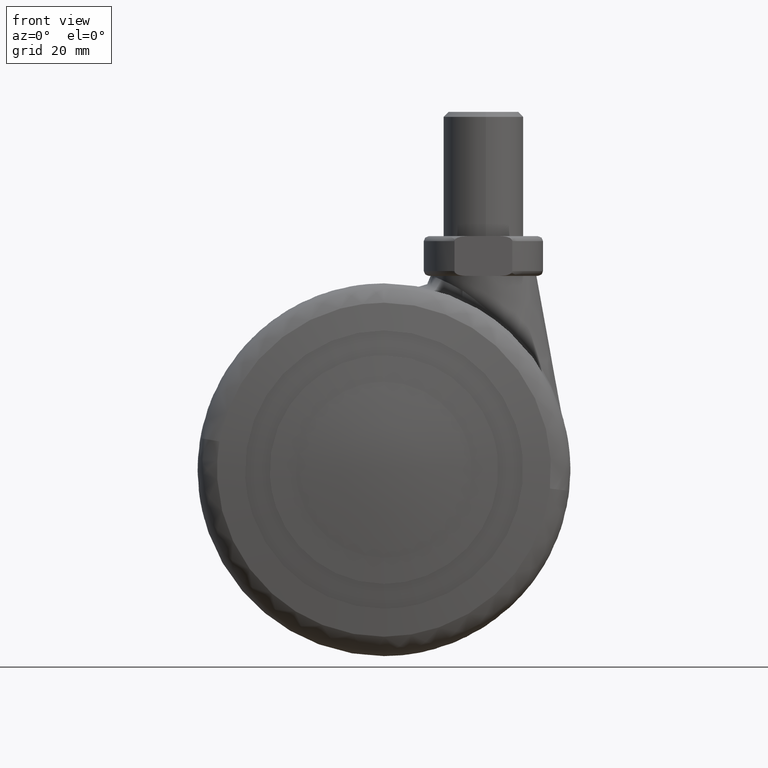
[diagram: clean part render]
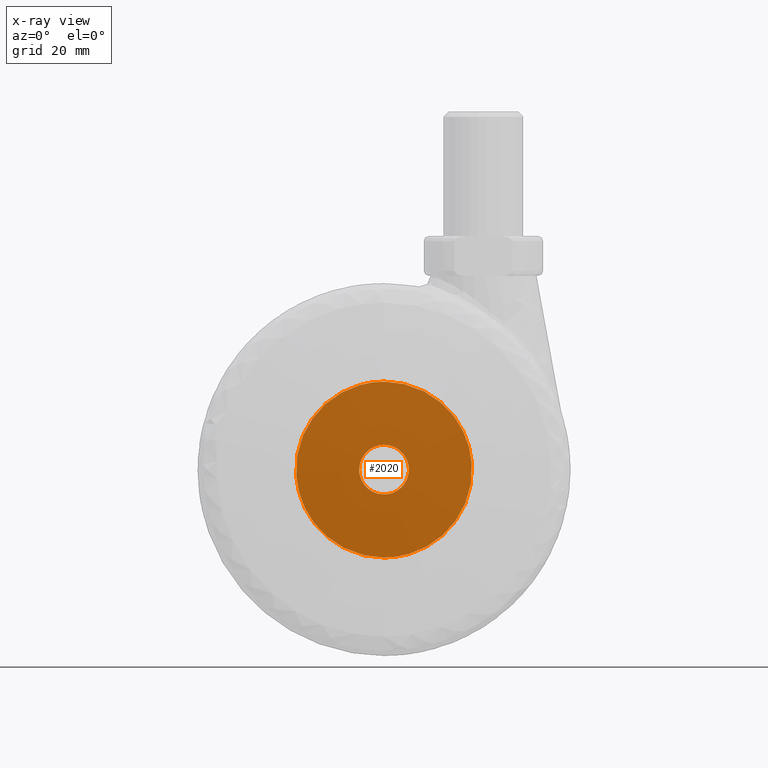
[diagram: x-ray — body ghosted, one internal face saturated and labeled with its STEP entity id]
A machine part, front view, then the same camera in x-ray: the body is ghosted and one INTERNAL B-rep face — a face not visible from any outside direction — is saturated and labeled: STEP entity #2020.
In plain terms, the highlighted face is a freeform B-spline surface patch.
Its self-contained STEP definition (entity closure, byte-faithful):
#62=CARTESIAN_POINT('',(4.961331069120732,28.500000000000000,-0.620640010454803));
#63=VERTEX_POINT('',#62);
#64=CARTESIAN_POINT('',(0.0,28.500000000000000,-5.000000000000004));
#65=VERTEX_POINT('',#64);
#66=CARTESIAN_POINT('',(4.961331069120732,28.500000000000004,-0.620640010454803));
#67=CARTESIAN_POINT('',(4.413493000651358,28.500000000000004,-5.000000000000005));
#68=CARTESIAN_POINT('',(0.0,28.500000000000000,-5.000000000000004));
#76=(BOUNDED_CURVE()B_SPLINE_CURVE(2,(#66,#67,#68),.UNSPECIFIED.,.F.,.U.)B_SPLINE_CURVE_WITH_KNOTS((3,3),(0.271473928974485,0.500000000000000),.UNSPECIFIED.)CURVE()GEOMETRIC_REPRESENTATION_ITEM()RATIONAL_B_SPLINE_CURVE((0.954005430267376,0.732265053898181,1.0))REPRESENTATION_ITEM(''));
#77=EDGE_CURVE('',#63,#65,#76,.T.);
#79=CARTESIAN_POINT('',(-4.999809615317388,28.500000000000000,0.043632677889176));
#80=VERTEX_POINT('',#79);
#81=CARTESIAN_POINT('',(0.0,28.500000000000000,-5.000000000000004));
#82=CARTESIAN_POINT('',(-5.000000000000001,28.500000000000007,-5.000000000000003));
#83=CARTESIAN_POINT('',(-5.0,28.500000000000000,-3.490128E-015));
#84=CARTESIAN_POINT('',(-5.0,28.500000000000004,0.021816754500845));
#85=CARTESIAN_POINT('',(-4.999809615317388,28.499999999999996,0.043632677889176));
#93=(BOUNDED_CURVE()B_SPLINE_CURVE(2,(#81,#82,#83,#84,#85),.UNSPECIFIED.,.F.,.U.)B_SPLINE_CURVE_WITH_KNOTS((3,2,3),(0.500000000000000,0.750000000000000,0.751539894362982),.UNSPECIFIED.)CURVE()GEOMETRIC_REPRESENTATION_ITEM()RATIONAL_B_SPLINE_CURVE((1.0,0.707106781186548,1.0,0.998195901533574,0.996414028035618))REPRESENTATION_ITEM(''));
#94=EDGE_CURVE('',#65,#80,#93,.T.);
#165=CARTESIAN_POINT('',(0.0,28.500000000000000,4.999999999999996));
#166=VERTEX_POINT('',#165);
#167=CARTESIAN_POINT('',(0.0,28.500000000000000,4.999999999999996));
#168=CARTESIAN_POINT('',(5.000000000000001,28.500000000000007,4.999999999999997));
#169=CARTESIAN_POINT('',(5.0,28.500000000000000,-3.490128E-015));
#170=CARTESIAN_POINT('',(5.0,28.499999999999996,-0.311524637723781));
#171=CARTESIAN_POINT('',(4.961331069120732,28.500000000000000,-0.620640010454803));
#179=(BOUNDED_CURVE()B_SPLINE_CURVE(2,(#167,#168,#169,#170,#171),.UNSPECIFIED.,.F.,.U.)B_SPLINE_CURVE_WITH_KNOTS((3,2,3),(0.0,0.250000000000000,0.271473928974485),.UNSPECIFIED.)CURVE()GEOMETRIC_REPRESENTATION_ITEM()RATIONAL_B_SPLINE_CURVE((1.0,0.707106781186548,1.0,0.974841727288367,0.954005430267376))REPRESENTATION_ITEM(''));
#180=EDGE_CURVE('',#166,#63,#179,.T.);
#214=CARTESIAN_POINT('',(-4.999809615317389,28.500000000000004,0.043632677889176));
#215=CARTESIAN_POINT('',(-4.956556052187115,28.500000000000000,4.999999999999997));
#216=CARTESIAN_POINT('',(0.0,28.500000000000000,4.999999999999996));
#224=(BOUNDED_CURVE()B_SPLINE_CURVE(2,(#214,#215,#216),.UNSPECIFIED.,.F.,.U.)B_SPLINE_CURVE_WITH_KNOTS((3,3),(0.751539894362982,1.0),.UNSPECIFIED.)CURVE()GEOMETRIC_REPRESENTATION_ITEM()RATIONAL_B_SPLINE_CURVE((0.996414028035619,0.708910879652973,1.0))REPRESENTATION_ITEM(''));
#225=EDGE_CURVE('',#80,#166,#224,.T.);
#883=CARTESIAN_POINT('',(17.645437678747609,28.500000000000000,1.388726063061739));
#884=VERTEX_POINT('',#883);
#890=CARTESIAN_POINT('',(0.0,28.500000000000000,17.700000874372648));
#891=VERTEX_POINT('',#890);
#892=CARTESIAN_POINT('',(0.0,28.500000000000000,17.700000874372648));
#893=CARTESIAN_POINT('',(16.361712510469939,28.500000000000004,17.700000874372655));
#894=CARTESIAN_POINT('',(17.645437678747605,28.500000000000000,1.388726063061739));
#902=(BOUNDED_CURVE()B_SPLINE_CURVE(2,(#892,#893,#894),.UNSPECIFIED.,.F.,.U.)B_SPLINE_CURVE_WITH_KNOTS((3,3),(0.0,0.236331300631283),.UNSPECIFIED.)CURVE()GEOMETRIC_REPRESENTATION_ITEM()RATIONAL_B_SPLINE_CURVE((1.0,0.723120658606936,0.969723356168718))REPRESENTATION_ITEM(''));
#903=EDGE_CURVE('',#891,#884,#902,.T.);
#905=CARTESIAN_POINT('',(-17.645437678747601,28.500000000000000,-1.388726063061741));
#906=VERTEX_POINT('',#905);
#907=CARTESIAN_POINT('',(-17.645437678747605,28.500000000000011,-1.388726063061741));
#908=CARTESIAN_POINT('',(-17.700000874372659,28.500000000000004,-0.695434928466698));
#909=CARTESIAN_POINT('',(-17.700000874372648,28.500000000000000,-3.490128E-015));
#910=CARTESIAN_POINT('',(-17.700000874372648,28.500000000000007,17.700000874372648));
#911=CARTESIAN_POINT('',(0.0,28.500000000000000,17.700000874372648));
#919=(BOUNDED_CURVE()B_SPLINE_CURVE(2,(#907,#908,#909,#910,#911),.UNSPECIFIED.,.F.,.U.)B_SPLINE_CURVE_WITH_KNOTS((3,2,3),(0.736331300631283,0.750000000000000,1.0),.UNSPECIFIED.)CURVE()GEOMETRIC_REPRESENTATION_ITEM()RATIONAL_B_SPLINE_CURVE((0.969723356168718,0.983986122579612,1.0,0.707106781186548,1.0))REPRESENTATION_ITEM(''));
#920=EDGE_CURVE('',#906,#891,#919,.T.);
#996=CARTESIAN_POINT('',(0.0,28.500000000000000,-17.700000874372659));
#997=VERTEX_POINT('',#996);
#998=CARTESIAN_POINT('',(0.0,28.500000000000000,-17.700000874372659));
#999=CARTESIAN_POINT('',(-16.361712510469943,28.499999999999996,-17.700000874372655));
#1000=CARTESIAN_POINT('',(-17.645437678747598,28.500000000000007,-1.388726063061740));
#1008=(BOUNDED_CURVE()B_SPLINE_CURVE(2,(#998,#999,#1000),.UNSPECIFIED.,.F.,.U.)B_SPLINE_CURVE_WITH_KNOTS((3,3),(0.500000000000000,0.736331300631283),.UNSPECIFIED.)CURVE()GEOMETRIC_REPRESENTATION_ITEM()RATIONAL_B_SPLINE_CURVE((1.0,0.723120658606936,0.969723356168718))REPRESENTATION_ITEM(''));
#1009=EDGE_CURVE('',#997,#906,#1008,.T.);
#1011=CARTESIAN_POINT('',(17.645437678747605,28.500000000000004,1.388726063061739));
#1012=CARTESIAN_POINT('',(17.700000874372648,28.500000000000004,0.695434928466692));
#1013=CARTESIAN_POINT('',(17.700000874372648,28.500000000000000,-3.490128E-015));
#1014=CARTESIAN_POINT('',(17.700000874372648,28.500000000000007,-17.700000874372662));
#1015=CARTESIAN_POINT('',(0.0,28.500000000000000,-17.700000874372659));
#1023=(BOUNDED_CURVE()B_SPLINE_CURVE(2,(#1011,#1012,#1013,#1014,#1015),.UNSPECIFIED.,.F.,.U.)B_SPLINE_CURVE_WITH_KNOTS((3,2,3),(0.236331300631283,0.250000000000000,0.500000000000000),.UNSPECIFIED.)CURVE()GEOMETRIC_REPRESENTATION_ITEM()RATIONAL_B_SPLINE_CURVE((0.969723356168718,0.983986122579612,1.0,0.707106781186548,1.0))REPRESENTATION_ITEM(''));
#1024=EDGE_CURVE('',#884,#997,#1023,.T.);
#2003=CARTESIAN_POINT('',(19.462828749340591,28.500000000000000,-19.468230893110409));
#2004=CARTESIAN_POINT('',(19.462828749340591,28.500000000000000,19.468231842612440));
#2005=CARTESIAN_POINT('',(-19.462829065841269,28.500000000000000,-19.468230893110409));
#2006=CARTESIAN_POINT('',(-19.462829065841269,28.500000000000000,19.468231842612440));
#2007=B_SPLINE_SURFACE_WITH_KNOTS('',1,1,((#2003,#2005),(#2004,#2006)),.UNSPECIFIED.,.F.,.F.,.U.,(2,2),(2,2),(0.0,38.936462735722849),(0.0,38.925657815181857),.UNSPECIFIED.);
#2008=ORIENTED_EDGE('',*,*,#903,.T.);
#2009=ORIENTED_EDGE('',*,*,#1024,.T.);
#2010=ORIENTED_EDGE('',*,*,#1009,.T.);
#2011=ORIENTED_EDGE('',*,*,#920,.T.);
#2012=EDGE_LOOP('',(#2008,#2009,#2010,#2011));
#2013=FACE_OUTER_BOUND('',#2012,.T.);
#2014=ORIENTED_EDGE('',*,*,#94,.F.);
#2015=ORIENTED_EDGE('',*,*,#77,.F.);
#2016=ORIENTED_EDGE('',*,*,#180,.F.);
#2017=ORIENTED_EDGE('',*,*,#225,.F.);
#2018=EDGE_LOOP('',(#2014,#2015,#2016,#2017));
#2019=FACE_BOUND('',#2018,.T.);
#2020=ADVANCED_FACE('',(#2013,#2019),#2007,.F.);